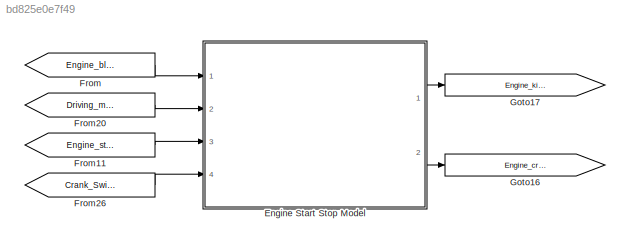
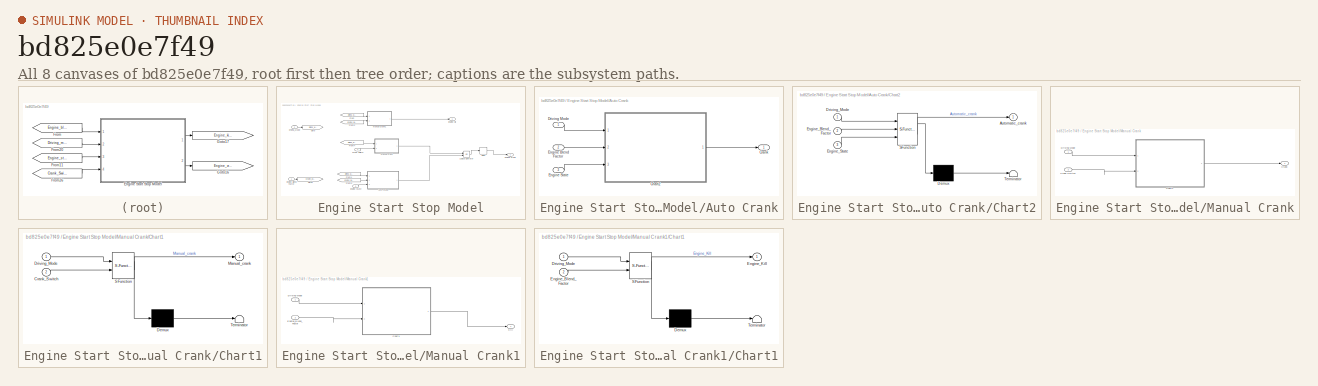
[diagram: thumbnail index - all 8 canvases of the model, root first then tree order]
MODEL slx_bd825e0e7f49
KIND model
CONFIG AbsTol = auto
CONFIG FixedStep = auto
CONFIG MaxStep = auto
CONFIG MinStep = auto
CONFIG RelTol = 1e-3
CONFIG SampleTimeConstraint = Unconstrained
CONFIG Solver = ode45
CONFIG SolverMode = Auto
CONFIG SolverName = ode45
CONFIG StartTime = 0.0
CONFIG StopTime = 10.0
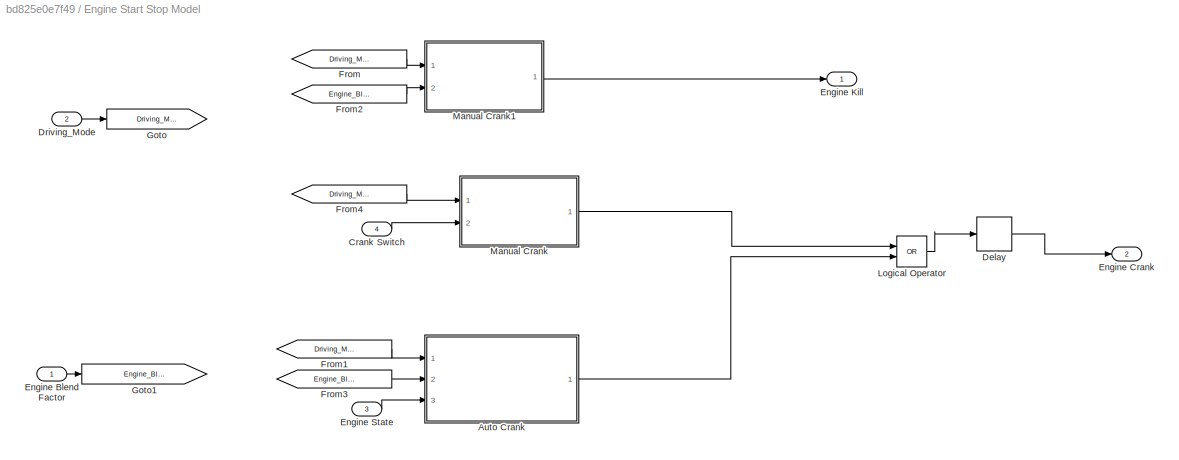
BLOCK [SubSystem] Engine Start Stop Model
  Ports = [4, 2]
  RequestExecContextInheritance = off
BLOCK [SubSystem] Engine Start Stop Model/Auto Crank
  Ports = [3, 1]
  RequestExecContextInheritance = off
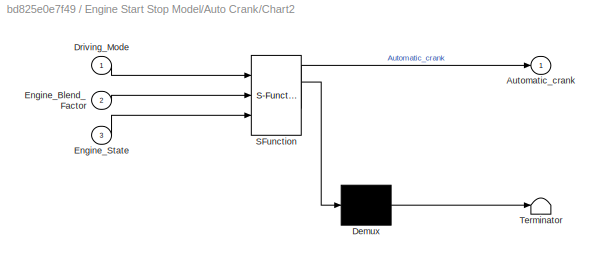
BLOCK [SubSystem] Engine Start Stop Model/Auto Crank/Chart2
  ErrorFcn = Stateflow.Translate.translate
  PermitHierarchicalResolution = ExplicitOnly
  Ports = [3, 1]
  RequestExecContextInheritance = off
  SFBlockType = Chart
  TreatAsAtomicUnit = on
BLOCK [Demux] Engine Start Stop Model/Auto Crank/Chart2/ Demux 
  Outputs = 1
  Ports = [1, 1]
BLOCK [S-Function] Engine Start Stop Model/Auto Crank/Chart2/ SFunction 
  EnableBusSupport = on
  FunctionName = sf_sfun
  PortCounts = [3 2]
  Ports = [3, 2]
  Tag = Stateflow S-Function validate_engine_start_stop 9
BLOCK [Terminator] Engine Start Stop Model/Auto Crank/Chart2/ Terminator 
BLOCK [Outport] Engine Start Stop Model/Auto Crank/Chart2/Automatic_crank
  IconDisplay = Port number
BLOCK [Inport] Engine Start Stop Model/Auto Crank/Chart2/Driving_Mode
  IconDisplay = Port number
BLOCK [Inport] Engine Start Stop Model/Auto Crank/Chart2/Engine_Blend_Factor
  IconDisplay = Port number
  Port = 2
BLOCK [Inport] Engine Start Stop Model/Auto Crank/Chart2/Engine_State
  IconDisplay = Port number
  Port = 3
BLOCK [Outport] Engine Start Stop Model/Auto Crank/Crank
  IconDisplay = Port number
BLOCK [Inport] Engine Start Stop Model/Auto Crank/Driving Mode
  IconDisplay = Port number
BLOCK [Inport] Engine Start Stop Model/Auto Crank/Engine Blend Factor
  IconDisplay = Port number
  Port = 2
BLOCK [Inport] Engine Start Stop Model/Auto Crank/Engine State
  IconDisplay = Port number
  Port = 3
BLOCK [Inport] Engine Start Stop Model/Crank Switch
  IconDisplay = Port number
  Port = 4
BLOCK [Delay] Engine Start Stop Model/Delay
  DelayLength = 1
  InitialCondition = 0
  InputPortMap = u0
  Ports = [1, 1]
BLOCK [Inport] Engine Start Stop Model/Driving_Mode
  IconDisplay = Port number
  Port = 2
BLOCK [Inport] Engine Start Stop Model/Engine Blend Factor
  IconDisplay = Port number
BLOCK [Outport] Engine Start Stop Model/Engine Crank
  IconDisplay = Port number
  Port = 2
BLOCK [Outport] Engine Start Stop Model/Engine Kill
  IconDisplay = Port number
BLOCK [Inport] Engine Start Stop Model/Engine State
  IconDisplay = Port number
  Port = 3
BLOCK [From] Engine Start Stop Model/From
  GotoTag = Driving_Mode
BLOCK [From] Engine Start Stop Model/From1
  GotoTag = Driving_Mode
BLOCK [From] Engine Start Stop Model/From2
  GotoTag = Engine_Blend_Factor
BLOCK [From] Engine Start Stop Model/From3
  GotoTag = Engine_Blend_Factor
BLOCK [From] Engine Start Stop Model/From4
  GotoTag = Driving_Mode
BLOCK [Goto] Engine Start Stop Model/Goto
  GotoTag = Driving_Mode
BLOCK [Goto] Engine Start Stop Model/Goto1
  GotoTag = Engine_Blend_Factor
BLOCK [Logic] Engine Start Stop Model/Logical Operator
  AllPortsSameDT = off
  Operator = OR
  OutDataTypeStr = boolean
  Ports = [2, 1]
BLOCK [SubSystem] Engine Start Stop Model/Manual Crank
  Ports = [2, 1]
  RequestExecContextInheritance = off
BLOCK [SubSystem] Engine Start Stop Model/Manual Crank/Chart1
  ErrorFcn = Stateflow.Translate.translate
  PermitHierarchicalResolution = ExplicitOnly
  Ports = [2, 1]
  RequestExecContextInheritance = off
  SFBlockType = Chart
  TreatAsAtomicUnit = on
BLOCK [Demux] Engine Start Stop Model/Manual Crank/Chart1/ Demux 
  Outputs = 1
  Ports = [1, 1]
BLOCK [S-Function] Engine Start Stop Model/Manual Crank/Chart1/ SFunction 
  EnableBusSupport = on
  FunctionName = sf_sfun
  PortCounts = [2 2]
  Ports = [2, 2]
  Tag = Stateflow S-Function validate_engine_start_stop 8
BLOCK [Terminator] Engine Start Stop Model/Manual Crank/Chart1/ Terminator 
BLOCK [Inport] Engine Start Stop Model/Manual Crank/Chart1/Crank_Switch
  IconDisplay = Port number
  Port = 2
BLOCK [Inport] Engine Start Stop Model/Manual Crank/Chart1/Driving_Mode
  IconDisplay = Port number
BLOCK [Outport] Engine Start Stop Model/Manual Crank/Chart1/Manual_crank
  IconDisplay = Port number
BLOCK [Outport] Engine Start Stop Model/Manual Crank/Crank
  IconDisplay = Port number
BLOCK [Inport] Engine Start Stop Model/Manual Crank/Crank Switch
  IconDisplay = Port number
  Port = 2
BLOCK [Inport] Engine Start Stop Model/Manual Crank/Driving Mode
  IconDisplay = Port number
BLOCK [SubSystem] Engine Start Stop Model/Manual Crank1
  Ports = [2, 1]
  RequestExecContextInheritance = off
BLOCK [SubSystem] Engine Start Stop Model/Manual Crank1/Chart1
  ErrorFcn = Stateflow.Translate.translate
  PermitHierarchicalResolution = ExplicitOnly
  Ports = [2, 1]
  RequestExecContextInheritance = off
  SFBlockType = Chart
  TreatAsAtomicUnit = on
BLOCK [Demux] Engine Start Stop Model/Manual Crank1/Chart1/ Demux 
  Outputs = 1
  Ports = [1, 1]
BLOCK [S-Function] Engine Start Stop Model/Manual Crank1/Chart1/ SFunction 
  EnableBusSupport = on
  FunctionName = sf_sfun
  PortCounts = [2 2]
  Ports = [2, 2]
  Tag = Stateflow S-Function validate_engine_start_stop 11
BLOCK [Terminator] Engine Start Stop Model/Manual Crank1/Chart1/ Terminator 
BLOCK [Inport] Engine Start Stop Model/Manual Crank1/Chart1/Driving_Mode
  IconDisplay = Port number
BLOCK [Inport] Engine Start Stop Model/Manual Crank1/Chart1/Engine_Blend_Factor
  IconDisplay = Port number
  Port = 2
BLOCK [Outport] Engine Start Stop Model/Manual Crank1/Chart1/Engine_Kill
  IconDisplay = Port number
BLOCK [Inport] Engine Start Stop Model/Manual Crank1/Driving Mode
  IconDisplay = Port number
BLOCK [Inport] Engine Start Stop Model/Manual Crank1/Engine_Blend_Factor
  IconDisplay = Port number
  Port = 2
BLOCK [Outport] Engine Start Stop Model/Manual Crank1/Kill
  IconDisplay = Port number
BLOCK [From] From
  GotoTag = Engine_blend_factor
BLOCK [From] From11
  GotoTag = Engine_state
BLOCK [From] From20
  GotoTag = Driving_mode
BLOCK [From] From26
  GotoTag = Crank_Switch
BLOCK [Goto] Goto16
  GotoTag = Engine_crank
BLOCK [Goto] Goto17
  GotoTag = Engine_kill
LINE Engine Start Stop Model/Auto Crank/Chart2:1 -> Engine Start Stop Model/Auto Crank/Crank:1
LINE Engine Start Stop Model/Auto Crank/Driving Mode:1 -> Engine Start Stop Model/Auto Crank/Chart2:1
LINE Engine Start Stop Model/Auto Crank/Engine Blend Factor:1 -> Engine Start Stop Model/Auto Crank/Chart2:2
LINE Engine Start Stop Model/Auto Crank/Engine State:1 -> Engine Start Stop Model/Auto Crank/Chart2:3
LINE Engine Start Stop Model/Auto Crank:1 -> Engine Start Stop Model/Logical Operator:2
LINE Engine Start Stop Model/Crank Switch:1 -> Engine Start Stop Model/Manual Crank:2
LINE Engine Start Stop Model/Delay:1 -> Engine Start Stop Model/Engine Crank:1
LINE Engine Start Stop Model/Driving_Mode:1 -> Engine Start Stop Model/Goto:1
LINE Engine Start Stop Model/Engine Blend Factor:1 -> Engine Start Stop Model/Goto1:1
LINE Engine Start Stop Model/Engine State:1 -> Engine Start Stop Model/Auto Crank:3
LINE Engine Start Stop Model/From1:1 -> Engine Start Stop Model/Auto Crank:1
LINE Engine Start Stop Model/From2:1 -> Engine Start Stop Model/Manual Crank1:2
LINE Engine Start Stop Model/From3:1 -> Engine Start Stop Model/Auto Crank:2
LINE Engine Start Stop Model/From4:1 -> Engine Start Stop Model/Manual Crank:1
LINE Engine Start Stop Model/From:1 -> Engine Start Stop Model/Manual Crank1:1
LINE Engine Start Stop Model/Logical Operator:1 -> Engine Start Stop Model/Delay:1
LINE Engine Start Stop Model/Manual Crank/Chart1:1 -> Engine Start Stop Model/Manual Crank/Crank:1
LINE Engine Start Stop Model/Manual Crank/Crank Switch:1 -> Engine Start Stop Model/Manual Crank/Chart1:2
LINE Engine Start Stop Model/Manual Crank/Driving Mode:1 -> Engine Start Stop Model/Manual Crank/Chart1:1
LINE Engine Start Stop Model/Manual Crank1/Chart1:1 -> Engine Start Stop Model/Manual Crank1/Kill:1
LINE Engine Start Stop Model/Manual Crank1/Driving Mode:1 -> Engine Start Stop Model/Manual Crank1/Chart1:1
LINE Engine Start Stop Model/Manual Crank1/Engine_Blend_Factor:1 -> Engine Start Stop Model/Manual Crank1/Chart1:2
LINE Engine Start Stop Model/Manual Crank1:1 -> Engine Start Stop Model/Engine Kill:1
LINE Engine Start Stop Model/Manual Crank:1 -> Engine Start Stop Model/Logical Operator:1
LINE Engine Start Stop Model:1 -> Goto17:1
LINE Engine Start Stop Model:2 -> Goto16:1
LINE From11:1 -> Engine Start Stop Model:3
LINE From20:1 -> Engine Start Stop Model:2
LINE From26:1 -> Engine Start Stop Model:4
LINE From:1 -> Engine Start Stop Model:1
CHART Engine Start Stop Model/Manual Crank/Chart1 states=2 transitions=3
  STATE_LABEL 'CRANK_ON\nduring: Manual_crank=1;'
  STATE_LABEL 'CRANKOFF\nduring: Manual_crank=0;\n'
CHART Engine Start Stop Model/Auto Crank/Chart2 states=2 transitions=4
  STATE_LABEL 'CRANK_ON\nduring: Automatic_crank=1;'
  STATE_LABEL 'CRANKOFF\nduring: Automatic_crank=0;\n'
CHART Engine Start Stop Model/Manual Crank1/Chart1 states=2 transitions=5
  STATE_LABEL 'KILL_ON\nduring: Engine_Kill=1;'
  STATE_LABEL 'KILL_OFF\nduring: Engine_Kill=0;\n'
